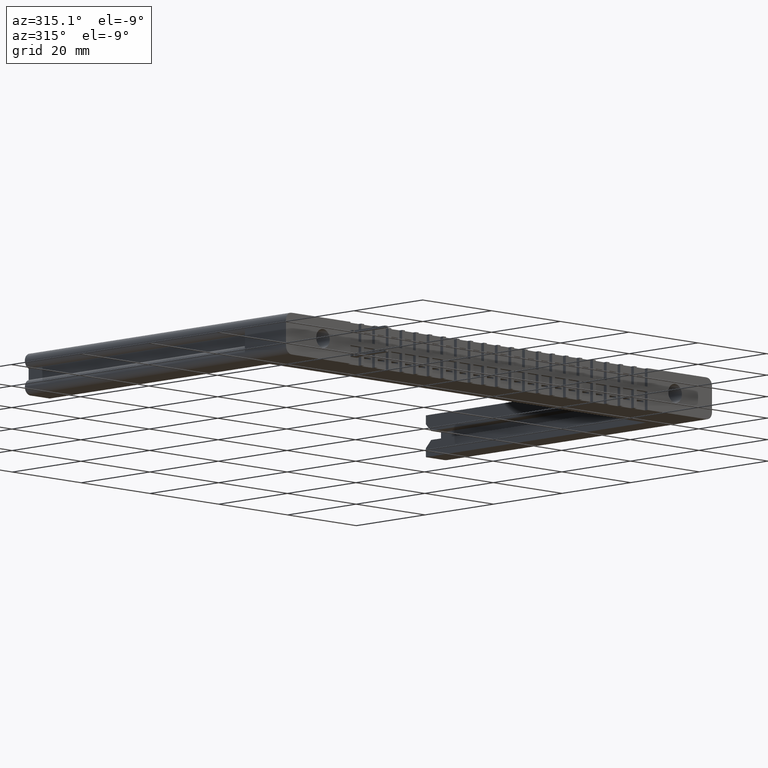
[diagram: clean part render]
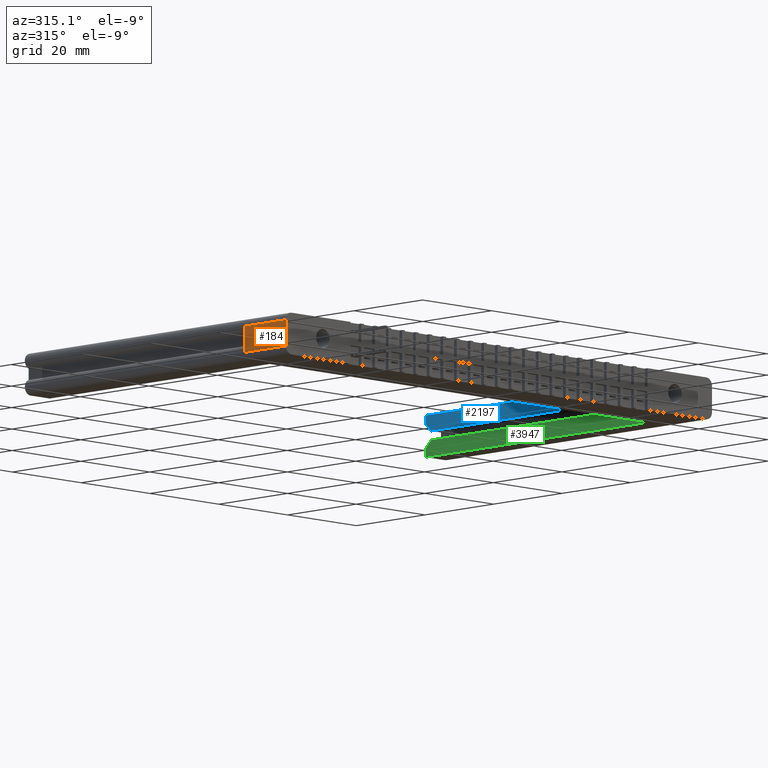
[diagram: same view with three faces highlighted in distinct colors, each labeled with its STEP entity id]
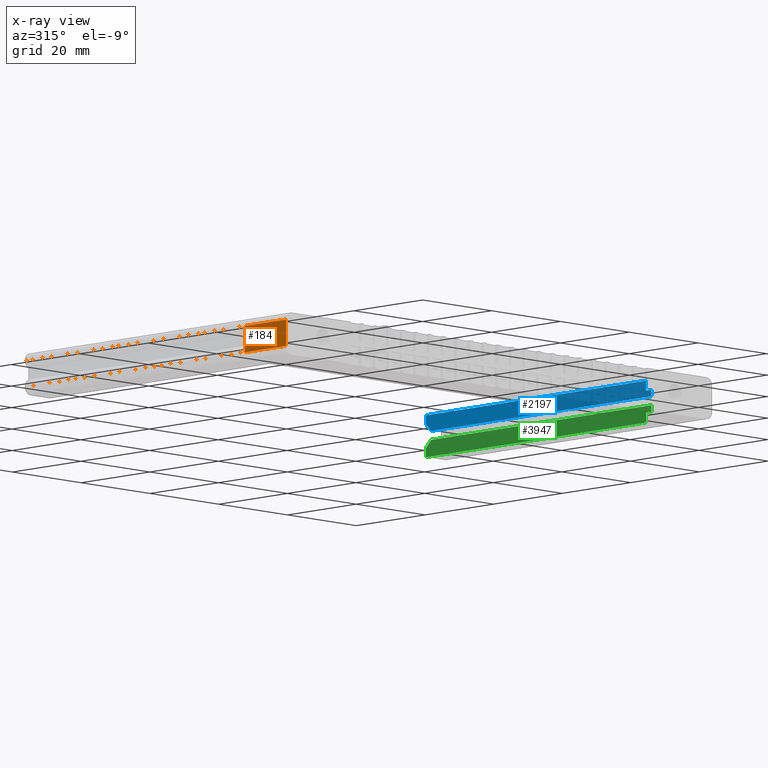
[diagram: x-ray of the same camera — body ghosted, the three highlighted faces saturated]
A machine part, auxiliary view with three faces highlighted in distinct colors.
The next image is the same camera in x-ray (body ghosted, the three faces saturated) — at least one of them is partly hidden behind the body in this view.
Their STEP definitions:

[orange] entity #184 — the highlighted planar face has unit normal (1, -0, 0).
#184 = ADVANCED_FACE ( 'NONE', ( #17616 ), #17338, .F. ) ;
#1107 = EDGE_LOOP ( 'NONE', ( #8693, #1871, #6033, #8983, #9762, #6148, #4404, #9415 ) ) ;
#1114 = CARTESIAN_POINT ( 'NONE',  ( -5.405997791409373000E-018, 0.4729999999999994200, 0.1072947366142826100 ) ) ;
#1120 = DIRECTION ( 'NONE',  ( 3.924343065899756400E-016, 1.000000000000000000, -0.0000000000000000000 ) ) ;
#1619 = VERTEX_POINT ( 'NONE', #20688 ) ;
#1761 = LINE ( 'NONE', #14235, #10933 ) ;
#1871 = ORIENTED_EDGE ( 'NONE', *, *, #5574, .T. ) ;
#1985 = LINE ( 'NONE', #18986, #18357 ) ;
#2261 = VECTOR ( 'NONE', #10810, 39.37007874015748100 ) ;
#2317 = DIRECTION ( 'NONE',  ( -0.0000000000000000000, -0.0000000000000000000, -1.000000000000000000 ) ) ;
#2764 = VERTEX_POINT ( 'NONE', #18669 ) ;
#4404 = ORIENTED_EDGE ( 'NONE', *, *, #10535, .F. ) ;
#4696 = VECTOR ( 'NONE', #10207, 39.37007874015748100 ) ;
#5574 = EDGE_CURVE ( 'NONE', #18592, #8138, #14502, .T. ) ;
#5604 = DIRECTION ( 'NONE',  ( 0.0000000000000000000, 0.0000000000000000000, 1.000000000000000000 ) ) ;
#5801 = EDGE_CURVE ( 'NONE', #2764, #20714, #14221, .T. ) ;
#6033 = ORIENTED_EDGE ( 'NONE', *, *, #21841, .F. ) ;
#6148 = ORIENTED_EDGE ( 'NONE', *, *, #5801, .T. ) ;
#6219 = VECTOR ( 'NONE', #10528, 39.37007874015748100 ) ;
#6745 = CARTESIAN_POINT ( 'NONE',  ( 1.177302919769926800E-015, 2.999999999999999600, -0.1075000000000000100 ) ) ;
#6837 = LINE ( 'NONE', #9090, #2261 ) ;
#7378 = VERTEX_POINT ( 'NONE', #19086 ) ;
#7830 = LINE ( 'NONE', #15545, #6219 ) ;
#8138 = VERTEX_POINT ( 'NONE', #1114 ) ;
#8386 = VERTEX_POINT ( 'NONE', #19943 ) ;
#8693 = ORIENTED_EDGE ( 'NONE', *, *, #17286, .T. ) ;
#8909 = CARTESIAN_POINT ( 'NONE',  ( 1.177302919769926800E-015, 2.999999999999999600, 0.1072947366142826100 ) ) ;
#8983 = ORIENTED_EDGE ( 'NONE', *, *, #17662, .T. ) ;
#9090 = CARTESIAN_POINT ( 'NONE',  ( 0.0000000000000000000, 0.0000000000000000000, 0.1715000000000000100 ) ) ;
#9415 = ORIENTED_EDGE ( 'NONE', *, *, #12502, .T. ) ;
#9753 = CARTESIAN_POINT ( 'NONE',  ( 1.177302919769926800E-015, 2.999999999999999600, 0.1075000000000000000 ) ) ;
#9762 = ORIENTED_EDGE ( 'NONE', *, *, #21232, .T. ) ;
#9897 = AXIS2_PLACEMENT_3D ( 'NONE', #21771, #20518, #20151 ) ;
#10207 = DIRECTION ( 'NONE',  ( -3.924343065899756400E-016, -1.000000000000000000, 0.0000000000000000000 ) ) ;
#10528 = DIRECTION ( 'NONE',  ( 3.924343065899756400E-016, 1.000000000000000000, -0.0000000000000000000 ) ) ;
#10535 = EDGE_CURVE ( 'NONE', #7378, #20714, #6837, .T. ) ;
#10810 = DIRECTION ( 'NONE',  ( -0.0000000000000000000, -0.0000000000000000000, -1.000000000000000000 ) ) ;
#10933 = VECTOR ( 'NONE', #2317, 39.37007874015748100 ) ;
#11542 = CARTESIAN_POINT ( 'NONE',  ( -5.405997791409373000E-018, 0.4729999999999994200, -0.1072947366142826100 ) ) ;
#12018 = LINE ( 'NONE', #9753, #15384 ) ;
#12502 = EDGE_CURVE ( 'NONE', #7378, #1619, #12018, .T. ) ;
#12841 = CARTESIAN_POINT ( 'NONE',  ( 1.177302919769926800E-015, 2.999999999999999600, 0.1715000000000000100 ) ) ;
#14221 = LINE ( 'NONE', #6745, #4696 ) ;
#14235 = CARTESIAN_POINT ( 'NONE',  ( 1.177302919769926800E-015, 2.999999999999999600, 0.1715000000000000100 ) ) ;
#14502 = LINE ( 'NONE', #21074, #18321 ) ;
#15229 = LINE ( 'NONE', #12841, #20076 ) ;
#15384 = VECTOR ( 'NONE', #1120, 39.37007874015748100 ) ;
#15545 = CARTESIAN_POINT ( 'NONE',  ( 1.177302919769926800E-015, 2.999999999999999600, -0.1072947366142826100 ) ) ;
#16146 = DIRECTION ( 'NONE',  ( -0.0000000000000000000, -0.0000000000000000000, -1.000000000000000000 ) ) ;
#17286 = EDGE_CURVE ( 'NONE', #1619, #18592, #15229, .T. ) ;
#17338 = PLANE ( 'NONE',  #9897 ) ;
#17616 = FACE_OUTER_BOUND ( 'NONE', #1107, .T. ) ;
#17662 = EDGE_CURVE ( 'NONE', #21484, #8386, #7830, .T. ) ;
#17892 = DIRECTION ( 'NONE',  ( -3.924343065899756400E-016, -1.000000000000000000, -0.0000000000000000000 ) ) ;
#18321 = VECTOR ( 'NONE', #17892, 39.37007874015748100 ) ;
#18357 = VECTOR ( 'NONE', #5604, 39.37007874015748100 ) ;
#18592 = VERTEX_POINT ( 'NONE', #8909 ) ;
#18669 = CARTESIAN_POINT ( 'NONE',  ( 1.177302919769926800E-015, 2.999999999999999600, -0.1075000000000000100 ) ) ;
#18986 = CARTESIAN_POINT ( 'NONE',  ( -5.405997791409373000E-018, 0.4729999999999994200, 0.04650000000000000000 ) ) ;
#19086 = CARTESIAN_POINT ( 'NONE',  ( 0.0000000000000000000, 0.0000000000000000000, 0.1075000000000000000 ) ) ;
#19943 = CARTESIAN_POINT ( 'NONE',  ( 1.178109447267713400E-015, 2.999999999999999600, -0.1072947366142826100 ) ) ;
#20076 = VECTOR ( 'NONE', #16146, 39.37007874015748100 ) ;
#20151 = DIRECTION ( 'NONE',  ( 3.924343065899756400E-016, 1.000000000000000000, 0.0000000000000000000 ) ) ;
#20518 = DIRECTION ( 'NONE',  ( 1.000000000000000000, -3.924343065899756400E-016, 0.0000000000000000000 ) ) ;
#20688 = CARTESIAN_POINT ( 'NONE',  ( 1.177302919769926800E-015, 2.999999999999999600, 0.1075000000000000000 ) ) ;
#20714 = VERTEX_POINT ( 'NONE', #20890 ) ;
#20890 = CARTESIAN_POINT ( 'NONE',  ( 0.0000000000000000000, 0.0000000000000000000, -0.1075000000000000100 ) ) ;
#21074 = CARTESIAN_POINT ( 'NONE',  ( 1.177302919769926800E-015, 2.999999999999999600, 0.1072947366142826100 ) ) ;
#21232 = EDGE_CURVE ( 'NONE', #8386, #2764, #1761, .T. ) ;
#21484 = VERTEX_POINT ( 'NONE', #11542 ) ;
#21771 = CARTESIAN_POINT ( 'NONE',  ( 1.177302919769926800E-015, 2.999999999999999600, 0.1715000000000000100 ) ) ;
#21841 = EDGE_CURVE ( 'NONE', #21484, #8138, #1985, .T. ) ;

[blue] entity #2197 — the highlighted planar face has unit normal (1, 0, 0).
#358 = CARTESIAN_POINT ( 'NONE',  ( 4.590500000000000500, 0.4729999999999994200, 0.1715000000000000100 ) ) ;
#1026 = CARTESIAN_POINT ( 'NONE',  ( 4.590500000000000500, 0.4109999999999994800, 0.08999999999999994100 ) ) ;
#1279 = LINE ( 'NONE', #7775, #5379 ) ;
#1590 = ORIENTED_EDGE ( 'NONE', *, *, #6980, .T. ) ;
#1611 = EDGE_CURVE ( 'NONE', #7232, #11833, #10553, .T. ) ;
#2051 = DIRECTION ( 'NONE',  ( 0.0000000000000000000, 0.0000000000000000000, -1.000000000000000000 ) ) ;
#2197 = ADVANCED_FACE ( 'NONE', ( #7835 ), #2869, .F. ) ;
#2869 = PLANE ( 'NONE',  #5043 ) ;
#3665 = EDGE_CURVE ( 'NONE', #8765, #18667, #21759, .T. ) ;
#3853 = EDGE_CURVE ( 'NONE', #18667, #16851, #8297, .T. ) ;
#4017 = VECTOR ( 'NONE', #4221, 39.37007874015748100 ) ;
#4150 = VERTEX_POINT ( 'NONE', #15936 ) ;
#4221 = DIRECTION ( 'NONE',  ( 0.0000000000000000000, -1.000000000000000000, 0.0000000000000000000 ) ) ;
#4245 = DIRECTION ( 'NONE',  ( 0.0000000000000000000, -0.7071067811865506800, -0.7071067811865443500 ) ) ;
#4359 = ORIENTED_EDGE ( 'NONE', *, *, #18987, .T. ) ;
#4592 = VECTOR ( 'NONE', #2051, 39.37007874015748100 ) ;
#5043 = AXIS2_PLACEMENT_3D ( 'NONE', #14625, #7704, #19811 ) ;
#5379 = VECTOR ( 'NONE', #19422, 39.37007874015748100 ) ;
#5945 = ORIENTED_EDGE ( 'NONE', *, *, #7832, .F. ) ;
#5979 = VECTOR ( 'NONE', #16492, 39.37007874015748100 ) ;
#6512 = LINE ( 'NONE', #14845, #5979 ) ;
#6525 = VECTOR ( 'NONE', #4245, 39.37007874015748100 ) ;
#6557 = CARTESIAN_POINT ( 'NONE',  ( 4.590500000000000500, 3.000000000000000400, 0.03699999999999999800 ) ) ;
#6980 = EDGE_CURVE ( 'NONE', #8765, #7232, #6512, .T. ) ;
#7232 = VERTEX_POINT ( 'NONE', #10448 ) ;
#7270 = EDGE_LOOP ( 'NONE', ( #1590, #11841, #4359, #5945, #19277, #15458, #21828 ) ) ;
#7704 = DIRECTION ( 'NONE',  ( 1.000000000000000000, 0.0000000000000000000, -0.0000000000000000000 ) ) ;
#7775 = CARTESIAN_POINT ( 'NONE',  ( 4.590500000000000500, 3.000000000000000400, 0.08999999999999994100 ) ) ;
#7832 = EDGE_CURVE ( 'NONE', #18355, #4150, #10197, .T. ) ;
#7835 = FACE_OUTER_BOUND ( 'NONE', #7270, .T. ) ;
#8297 = LINE ( 'NONE', #13514, #20980 ) ;
#8765 = VERTEX_POINT ( 'NONE', #9306 ) ;
#8920 = VECTOR ( 'NONE', #13410, 39.37007874015748100 ) ;
#9306 = CARTESIAN_POINT ( 'NONE',  ( 4.590500000000000500, 3.000000000000000400, 0.1715000000000000100 ) ) ;
#9568 = CARTESIAN_POINT ( 'NONE',  ( 4.590500000000000500, 2.940000000000000400, 0.03699999999999999800 ) ) ;
#9997 = LINE ( 'NONE', #6557, #8920 ) ;
#10197 = LINE ( 'NONE', #17305, #4592 ) ;
#10448 = CARTESIAN_POINT ( 'NONE',  ( 4.590500000000000500, 3.000000000000000400, 0.09699999999999936500 ) ) ;
#10553 = LINE ( 'NONE', #9568, #6525 ) ;
#11833 = VERTEX_POINT ( 'NONE', #12779 ) ;
#11841 = ORIENTED_EDGE ( 'NONE', *, *, #1611, .T. ) ;
#12779 = CARTESIAN_POINT ( 'NONE',  ( 4.590500000000000500, 2.940000000000000400, 0.03699999999999999800 ) ) ;
#13410 = DIRECTION ( 'NONE',  ( 0.0000000000000000000, -1.000000000000000000, 0.0000000000000000000 ) ) ;
#13514 = CARTESIAN_POINT ( 'NONE',  ( 4.590500000000000500, 0.4729999999999994200, 0.1715000000000000100 ) ) ;
#14625 = CARTESIAN_POINT ( 'NONE',  ( 4.590500000000000500, 3.000000000000000400, 0.1715000000000000100 ) ) ;
#14845 = CARTESIAN_POINT ( 'NONE',  ( 4.590500000000000500, 3.000000000000000400, 0.1715000000000000100 ) ) ;
#15160 = DIRECTION ( 'NONE',  ( -0.0000000000000000000, -0.0000000000000000000, -1.000000000000000000 ) ) ;
#15458 = ORIENTED_EDGE ( 'NONE', *, *, #3853, .F. ) ;
#15936 = CARTESIAN_POINT ( 'NONE',  ( 4.590500000000000500, 0.4109999999999994800, 0.03699999999999999800 ) ) ;
#16238 = CARTESIAN_POINT ( 'NONE',  ( 4.590500000000000500, 0.4729999999999995900, 0.08999999999999994100 ) ) ;
#16492 = DIRECTION ( 'NONE',  ( -0.0000000000000000000, -0.0000000000000000000, -1.000000000000000000 ) ) ;
#16851 = VERTEX_POINT ( 'NONE', #16238 ) ;
#17305 = CARTESIAN_POINT ( 'NONE',  ( 4.590500000000000500, 0.4109999999999994800, 0.08999999999999994100 ) ) ;
#18307 = EDGE_CURVE ( 'NONE', #16851, #18355, #1279, .T. ) ;
#18355 = VERTEX_POINT ( 'NONE', #1026 ) ;
#18667 = VERTEX_POINT ( 'NONE', #358 ) ;
#18987 = EDGE_CURVE ( 'NONE', #11833, #4150, #9997, .T. ) ;
#19214 = CARTESIAN_POINT ( 'NONE',  ( 4.590500000000000500, 3.000000000000000400, 0.1715000000000000100 ) ) ;
#19277 = ORIENTED_EDGE ( 'NONE', *, *, #18307, .F. ) ;
#19422 = DIRECTION ( 'NONE',  ( 0.0000000000000000000, -1.000000000000000000, 0.0000000000000000000 ) ) ;
#19811 = DIRECTION ( 'NONE',  ( -0.0000000000000000000, 0.0000000000000000000, -1.000000000000000000 ) ) ;
#20980 = VECTOR ( 'NONE', #15160, 39.37007874015748100 ) ;
#21759 = LINE ( 'NONE', #19214, #4017 ) ;
#21828 = ORIENTED_EDGE ( 'NONE', *, *, #3665, .F. ) ;

[green] entity #3947 — the highlighted planar face has unit normal (1, 0, 0).
#141 = CARTESIAN_POINT ( 'NONE',  ( 4.590500000000000500, 3.000000000000000400, -0.09699999999999933700 ) ) ;
#465 = DIRECTION ( 'NONE',  ( 0.0000000000000000000, -1.000000000000000000, 0.0000000000000000000 ) ) ;
#475 = VERTEX_POINT ( 'NONE', #7651 ) ;
#1737 = PLANE ( 'NONE',  #12062 ) ;
#1846 = VECTOR ( 'NONE', #5988, 39.37007874015748100 ) ;
#2300 = CARTESIAN_POINT ( 'NONE',  ( 4.590500000000000500, 3.000000000000000400, -0.03699999999999999800 ) ) ;
#2413 = LINE ( 'NONE', #14429, #1846 ) ;
#2668 = EDGE_CURVE ( 'NONE', #15116, #475, #6207, .T. ) ;
#3002 = VECTOR ( 'NONE', #9857, 39.37007874015748100 ) ;
#3049 = DIRECTION ( 'NONE',  ( -0.0000000000000000000, -0.0000000000000000000, -1.000000000000000000 ) ) ;
#3190 = VECTOR ( 'NONE', #6359, 39.37007874015748100 ) ;
#3947 = ADVANCED_FACE ( 'NONE', ( #10698 ), #1737, .F. ) ;
#4001 = VECTOR ( 'NONE', #12460, 39.37007874015748100 ) ;
#4336 = ORIENTED_EDGE ( 'NONE', *, *, #8135, .T. ) ;
#4593 = LINE ( 'NONE', #13290, #13626 ) ;
#4673 = CARTESIAN_POINT ( 'NONE',  ( 4.590500000000000500, 3.000000000000000400, -0.1715000000000000100 ) ) ;
#4720 = EDGE_CURVE ( 'NONE', #20962, #8705, #13084, .T. ) ;
#5988 = DIRECTION ( 'NONE',  ( -0.0000000000000000000, -0.0000000000000000000, -1.000000000000000000 ) ) ;
#6165 = VERTEX_POINT ( 'NONE', #7858 ) ;
#6207 = LINE ( 'NONE', #16857, #19010 ) ;
#6359 = DIRECTION ( 'NONE',  ( 0.0000000000000000000, -1.000000000000000000, 0.0000000000000000000 ) ) ;
#6715 = ORIENTED_EDGE ( 'NONE', *, *, #2668, .T. ) ;
#6779 = DIRECTION ( 'NONE',  ( -0.0000000000000000000, -0.0000000000000000000, -1.000000000000000000 ) ) ;
#6945 = DIRECTION ( 'NONE',  ( 1.000000000000000000, 0.0000000000000000000, -0.0000000000000000000 ) ) ;
#6982 = ORIENTED_EDGE ( 'NONE', *, *, #4720, .T. ) ;
#7444 = CARTESIAN_POINT ( 'NONE',  ( 4.590500000000000500, 2.940000000000000400, -0.03699999999999999800 ) ) ;
#7651 = CARTESIAN_POINT ( 'NONE',  ( 4.590500000000000500, 3.000000000000000400, -0.1715000000000000100 ) ) ;
#7750 = LINE ( 'NONE', #4673, #3190 ) ;
#7858 = CARTESIAN_POINT ( 'NONE',  ( 4.590500000000000500, 0.4109999999999994800, -0.03699999999999999800 ) ) ;
#8135 = EDGE_CURVE ( 'NONE', #475, #20026, #7750, .T. ) ;
#8667 = LINE ( 'NONE', #14838, #3002 ) ;
#8705 = VERTEX_POINT ( 'NONE', #15868 ) ;
#9165 = ORIENTED_EDGE ( 'NONE', *, *, #11988, .F. ) ;
#9857 = DIRECTION ( 'NONE',  ( -0.0000000000000000000, 0.7071067811865509000, -0.7071067811865441300 ) ) ;
#10495 = ORIENTED_EDGE ( 'NONE', *, *, #18271, .F. ) ;
#10698 = FACE_OUTER_BOUND ( 'NONE', #18842, .T. ) ;
#11988 = EDGE_CURVE ( 'NONE', #6165, #8705, #4593, .T. ) ;
#12062 = AXIS2_PLACEMENT_3D ( 'NONE', #17022, #6945, #18635 ) ;
#12179 = CARTESIAN_POINT ( 'NONE',  ( 4.590500000000000500, 0.4729999999999994200, -0.1715000000000000100 ) ) ;
#12372 = CARTESIAN_POINT ( 'NONE',  ( 4.590500000000000500, 3.000000000000000400, -0.08999999999999994100 ) ) ;
#12460 = DIRECTION ( 'NONE',  ( 0.0000000000000000000, -1.000000000000000000, 0.0000000000000000000 ) ) ;
#12608 = VECTOR ( 'NONE', #465, 39.37007874015748100 ) ;
#13084 = LINE ( 'NONE', #12372, #4001 ) ;
#13290 = CARTESIAN_POINT ( 'NONE',  ( 4.590500000000000500, 0.4109999999999994800, -0.08999999999999994100 ) ) ;
#13626 = VECTOR ( 'NONE', #3049, 39.37007874015748100 ) ;
#14429 = CARTESIAN_POINT ( 'NONE',  ( 4.590500000000000500, 0.4729999999999994200, 0.1715000000000000100 ) ) ;
#14838 = CARTESIAN_POINT ( 'NONE',  ( 4.590500000000000500, 2.940000000000000400, -0.03699999999999999800 ) ) ;
#15116 = VERTEX_POINT ( 'NONE', #141 ) ;
#15868 = CARTESIAN_POINT ( 'NONE',  ( 4.590500000000000500, 0.4109999999999994800, -0.08999999999999994100 ) ) ;
#16010 = EDGE_CURVE ( 'NONE', #17212, #15116, #8667, .T. ) ;
#16766 = CARTESIAN_POINT ( 'NONE',  ( 4.590500000000000500, 0.4729999999999995900, -0.08999999999999994100 ) ) ;
#16857 = CARTESIAN_POINT ( 'NONE',  ( 4.590500000000000500, 3.000000000000000400, 0.1715000000000000100 ) ) ;
#16971 = ORIENTED_EDGE ( 'NONE', *, *, #16010, .T. ) ;
#17022 = CARTESIAN_POINT ( 'NONE',  ( 4.590500000000000500, 3.000000000000000400, 0.1715000000000000100 ) ) ;
#17212 = VERTEX_POINT ( 'NONE', #7444 ) ;
#18184 = EDGE_CURVE ( 'NONE', #17212, #6165, #21285, .T. ) ;
#18271 = EDGE_CURVE ( 'NONE', #20962, #20026, #2413, .T. ) ;
#18635 = DIRECTION ( 'NONE',  ( -0.0000000000000000000, 0.0000000000000000000, -1.000000000000000000 ) ) ;
#18842 = EDGE_LOOP ( 'NONE', ( #21508, #16971, #6715, #4336, #10495, #6982, #9165 ) ) ;
#19010 = VECTOR ( 'NONE', #6779, 39.37007874015748100 ) ;
#20026 = VERTEX_POINT ( 'NONE', #12179 ) ;
#20962 = VERTEX_POINT ( 'NONE', #16766 ) ;
#21285 = LINE ( 'NONE', #2300, #12608 ) ;
#21508 = ORIENTED_EDGE ( 'NONE', *, *, #18184, .F. ) ;